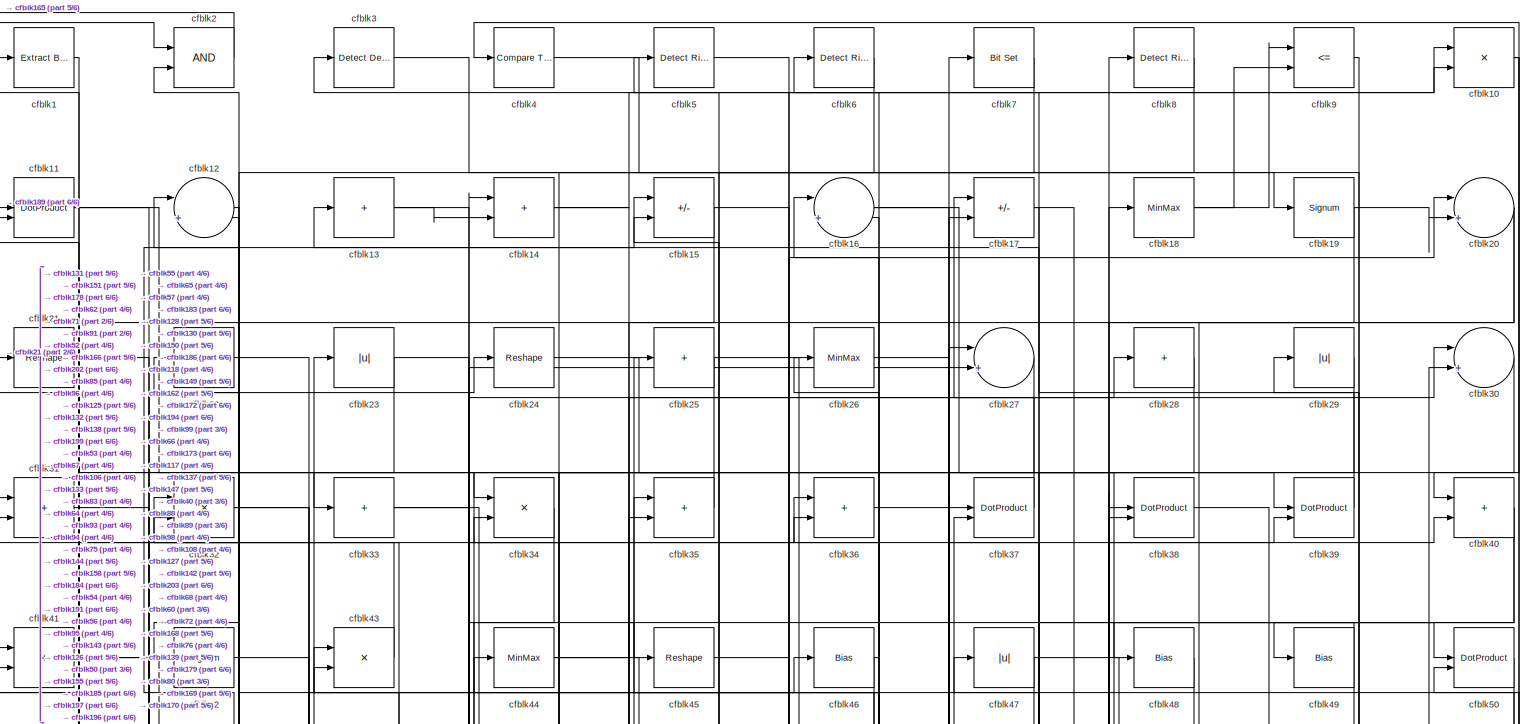
[diagram: root canvas - part 1/6, full width, top band]
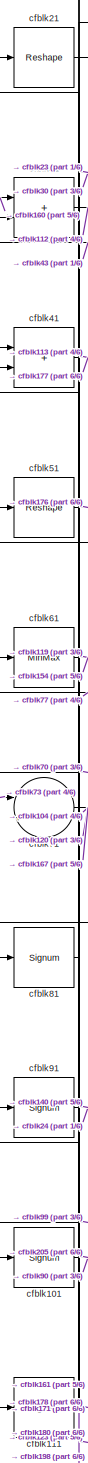
[diagram: root canvas - part 2/6, middle left region]
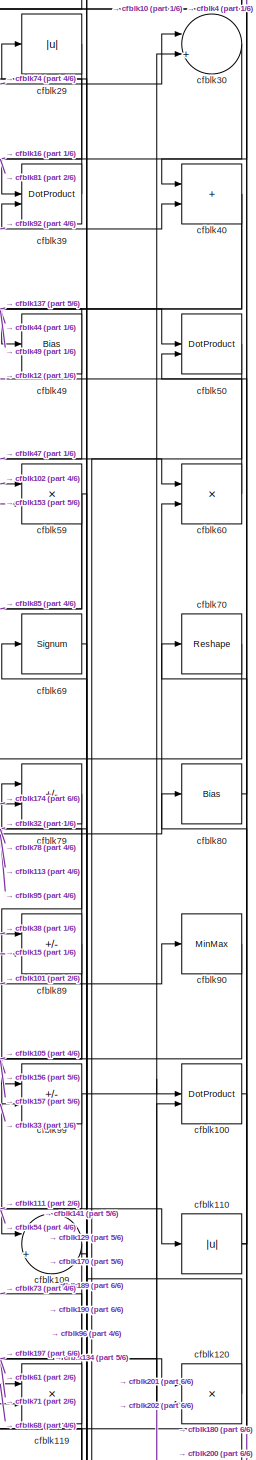
[diagram: root canvas - part 3/6, middle right region]
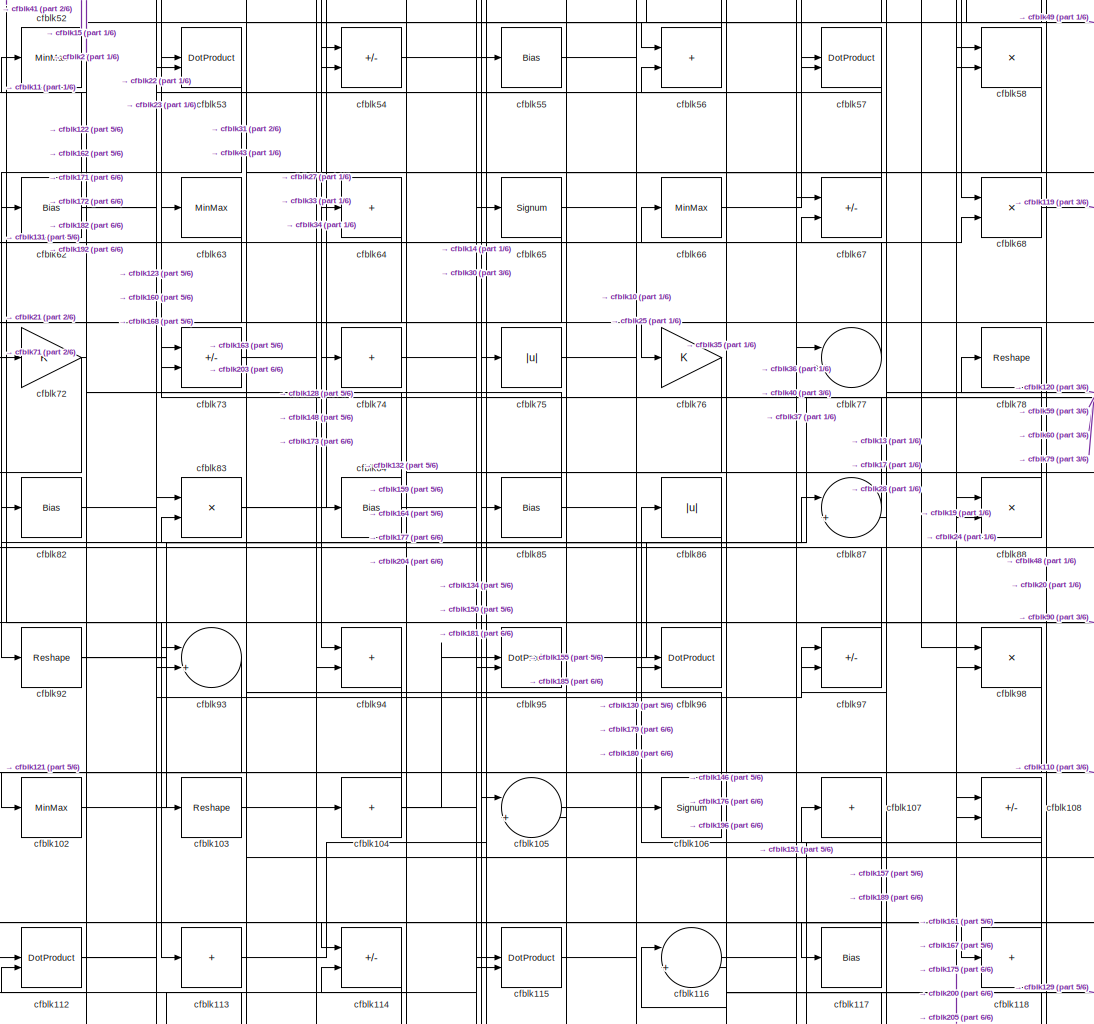
[diagram: root canvas - part 4/6, central region]
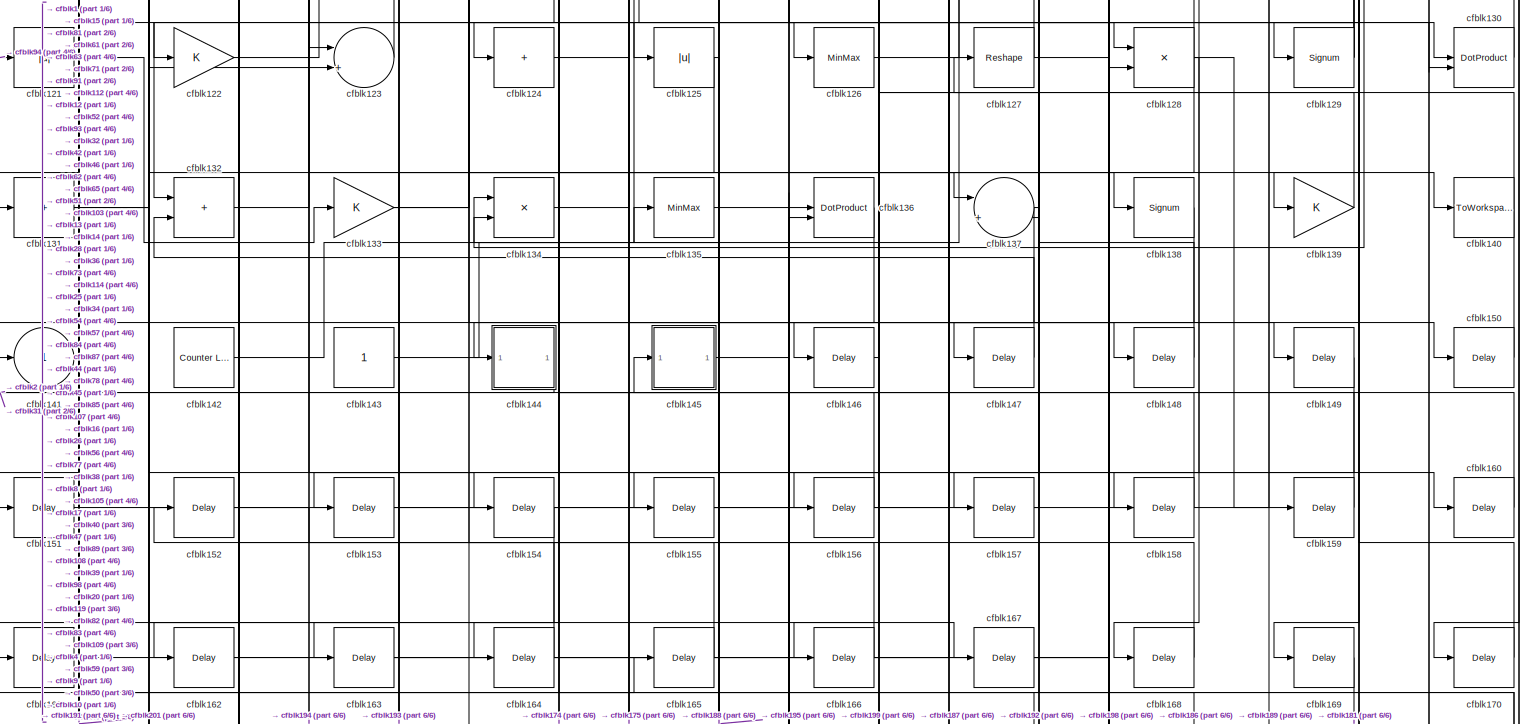
[diagram: root canvas - part 5/6, full width, bottom band]
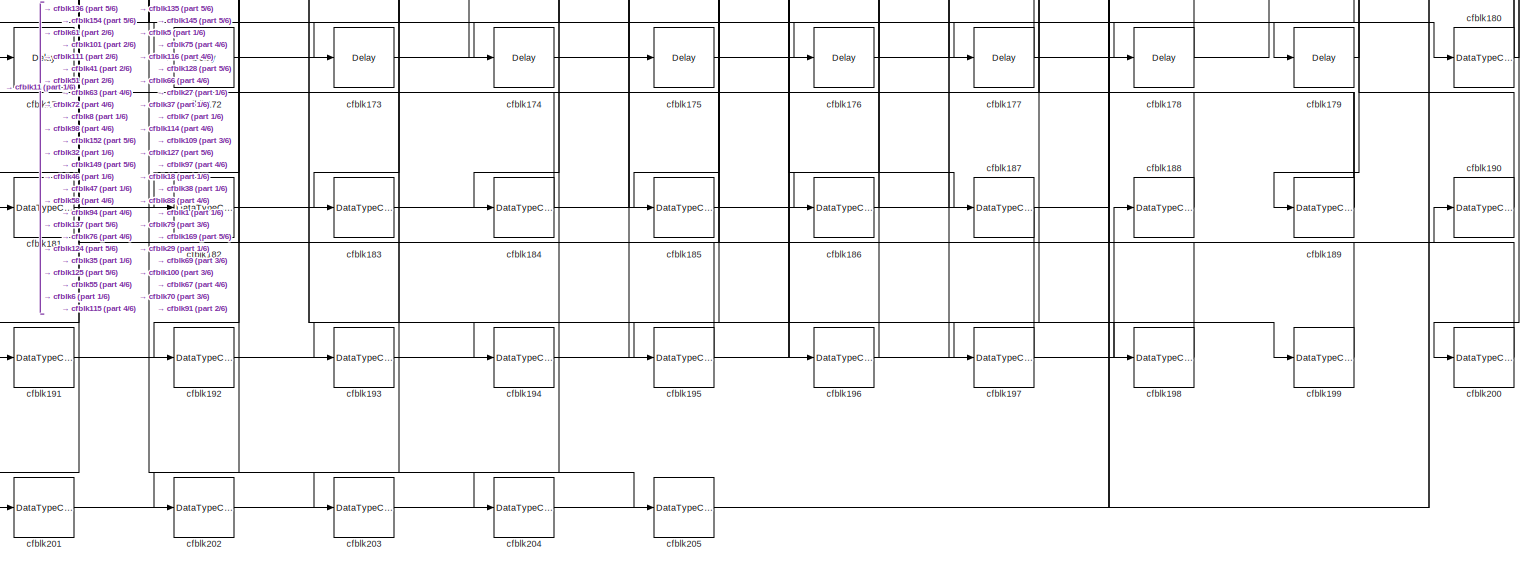
[diagram: root canvas - part 6/6, full width, bottom band]
MODEL slx_3c746002ce13
KIND model
CONFIG AbsTol = auto
CONFIG EnableMultiTasking = off
CONFIG FixedStep = auto
CONFIG MaxStep = auto
CONFIG MinStep = auto
CONFIG RelTol = 1e-3
CONFIG SampleTimeConstraint = Unconstrained
CONFIG SolverName = VariableStepAuto
CONFIG StartTime = 0.0
CONFIG StopTime = 10.0
BLOCK [Reference] cfblk1  REF=simulink/Logic and Bit
Operations/Extract Bits
  LibrarySourceBlock = hdlsllib/Logic and Bit\nOperations/Extract Bits
  SourceBlock = simulink/Logic and Bit\nOperations/Extract Bits
  SourceType = Extract Bits
BLOCK [Product] cfblk10
  Inputs = */
  RndMeth = Zero
  SaturateOnIntegerOverflow = on
BLOCK [DotProduct] cfblk100
  OutDataTypeStr = Inherit: Inherit via internal rule
BLOCK [Signum] cfblk101
BLOCK [MinMax] cfblk102
BLOCK [Reshape] cfblk103
BLOCK [Sum] cfblk104
  IconShape = rectangular
  Inputs = +
BLOCK [Sum] cfblk105
  Inputs = |++
BLOCK [Signum] cfblk106
BLOCK [Sum] cfblk107
  IconShape = rectangular
  Inputs = +
BLOCK [Sum] cfblk108
  IconShape = rectangular
  Inputs = +-
BLOCK [Sum] cfblk109
  Inputs = |++
BLOCK [DotProduct] cfblk11
  OutDataTypeStr = Inherit: Inherit via internal rule
BLOCK [Abs] cfblk110
  SaturateOnIntegerOverflow = off
BLOCK [Signum] cfblk111
BLOCK [DotProduct] cfblk112
  OutDataTypeStr = Inherit: Inherit via internal rule
BLOCK [Sum] cfblk113
  IconShape = rectangular
  Inputs = +
BLOCK [Sum] cfblk114
  IconShape = rectangular
  Inputs = +-
BLOCK [DotProduct] cfblk115
  OutDataTypeStr = Inherit: Inherit via internal rule
BLOCK [Sum] cfblk116
  Inputs = |++
BLOCK [Bias] cfblk117
  Bias = 0.0
  SaturateOnIntegerOverflow = off
BLOCK [Sum] cfblk118
  IconShape = rectangular
  Inputs = +
BLOCK [Product] cfblk119
  Inputs = */
  RndMeth = Zero
  SaturateOnIntegerOverflow = on
BLOCK [Sum] cfblk12
  Inputs = |++
BLOCK [Product] cfblk120
  Inputs = */
  RndMeth = Zero
  SaturateOnIntegerOverflow = on
BLOCK [Abs] cfblk121
  SaturateOnIntegerOverflow = off
BLOCK [Gain] cfblk122
BLOCK [Sum] cfblk123
  Inputs = |++
BLOCK [Sum] cfblk124
  IconShape = rectangular
  Inputs = +
BLOCK [Abs] cfblk125
  SaturateOnIntegerOverflow = off
BLOCK [MinMax] cfblk126
BLOCK [Reshape] cfblk127
BLOCK [Product] cfblk128
  Inputs = */
  RndMeth = Zero
  SaturateOnIntegerOverflow = on
BLOCK [Signum] cfblk129
BLOCK [Sum] cfblk13
  IconShape = rectangular
  Inputs = +
BLOCK [DotProduct] cfblk130
  OutDataTypeStr = Inherit: Inherit via internal rule
BLOCK [Sum] cfblk131
  IconShape = rectangular
  Inputs = +
BLOCK [Sum] cfblk132
  IconShape = rectangular
BLOCK [Gain] cfblk133
BLOCK [Product] cfblk134
  Inputs = */
  RndMeth = Zero
  SaturateOnIntegerOverflow = on
BLOCK [MinMax] cfblk135
BLOCK [DotProduct] cfblk136
  OutDataTypeStr = Inherit: Inherit via internal rule
BLOCK [Sum] cfblk137
  Inputs = |++
BLOCK [Signum] cfblk138
BLOCK [Gain] cfblk139
BLOCK [Sum] cfblk14
  IconShape = rectangular
BLOCK [ToWorkspace] cfblk140
  MaxDataPoints = inf
  SampleTime = -1
  SaveFormat = Timeseries
  VariableName = simout
BLOCK [Outport] cfblk141
  VectorParamsAs1DForOutWhenUnconnected = off
BLOCK [Reference] cfblk142  REF=hdlsllib/Sources/Counter
Limited
  SourceBlock = hdlsllib/Sources/Counter\nLimited
  SourceType = Counter Limited
BLOCK [Constant] cfblk143
  SampleTime = -1
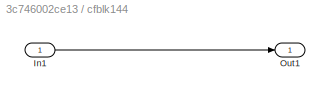
BLOCK [SubSystem] cfblk144
  LibrarySourceBlock = hdlsllib/Ports &\nSubsystems/Subsystem
BLOCK [Inport] cfblk144/In1
BLOCK [Outport] cfblk144/Out1
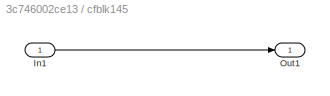
BLOCK [SubSystem] cfblk145
  LibrarySourceBlock = hdlsllib/Ports &\nSubsystems/Subsystem
BLOCK [Inport] cfblk145/In1
BLOCK [Outport] cfblk145/Out1
BLOCK [Delay] cfblk146
  InputPortMap = u0
  SampleTime = 1
BLOCK [Delay] cfblk147
  InputPortMap = u0
  SampleTime = 1
BLOCK [Delay] cfblk148
  InputPortMap = u0
  SampleTime = 1
BLOCK [Delay] cfblk149
  InputPortMap = u0
  SampleTime = 1
BLOCK [Sum] cfblk15
  IconShape = rectangular
  Inputs = +-
BLOCK [Delay] cfblk150
  InputPortMap = u0
  SampleTime = 1
BLOCK [Delay] cfblk151
  InputPortMap = u0
  SampleTime = 1
BLOCK [Delay] cfblk152
  InputPortMap = u0
  SampleTime = 1
BLOCK [Delay] cfblk153
  InputPortMap = u0
  SampleTime = 1
BLOCK [Delay] cfblk154
  InputPortMap = u0
  SampleTime = 1
BLOCK [Delay] cfblk155
  InputPortMap = u0
  SampleTime = 1
BLOCK [Delay] cfblk156
  InputPortMap = u0
  SampleTime = 1
BLOCK [Delay] cfblk157
  InputPortMap = u0
  SampleTime = 1
BLOCK [Delay] cfblk158
  InputPortMap = u0
  SampleTime = 1
BLOCK [Delay] cfblk159
  InputPortMap = u0
  SampleTime = 1
BLOCK [Sum] cfblk16
  Inputs = |++
BLOCK [Delay] cfblk160
  InputPortMap = u0
  SampleTime = 1
BLOCK [Delay] cfblk161
  InputPortMap = u0
  SampleTime = 1
BLOCK [Delay] cfblk162
  InputPortMap = u0
  SampleTime = 1
BLOCK [Delay] cfblk163
  InputPortMap = u0
  SampleTime = 1
BLOCK [Delay] cfblk164
  InputPortMap = u0
  SampleTime = 1
BLOCK [Delay] cfblk165
  InputPortMap = u0
  SampleTime = 1
BLOCK [Delay] cfblk166
  InputPortMap = u0
  SampleTime = 1
BLOCK [Delay] cfblk167
  InputPortMap = u0
  SampleTime = 1
BLOCK [Delay] cfblk168
  InputPortMap = u0
  SampleTime = 1
BLOCK [Delay] cfblk169
  InputPortMap = u0
  SampleTime = 1
BLOCK [Sum] cfblk17
  IconShape = rectangular
  Inputs = +-
BLOCK [Delay] cfblk170
  InputPortMap = u0
  SampleTime = 1
BLOCK [Delay] cfblk171
  InputPortMap = u0
  SampleTime = 1
BLOCK [Delay] cfblk172
  InputPortMap = u0
  SampleTime = 1
BLOCK [Delay] cfblk173
  InputPortMap = u0
  SampleTime = 1
BLOCK [Delay] cfblk174
  InputPortMap = u0
  SampleTime = 1
BLOCK [Delay] cfblk175
  InputPortMap = u0
  SampleTime = 1
BLOCK [Delay] cfblk176
  InputPortMap = u0
  SampleTime = 1
BLOCK [Delay] cfblk177
  InputPortMap = u0
  SampleTime = 1
BLOCK [Delay] cfblk178
  InputPortMap = u0
  SampleTime = 1
BLOCK [Delay] cfblk179
  InputPortMap = u0
  SampleTime = 1
BLOCK [MinMax] cfblk18
BLOCK [DataTypeConversion] cfblk180
  RndMeth = Floor
  SaturateOnIntegerOverflow = off
BLOCK [DataTypeConversion] cfblk181
  OutDataTypeStr = uint8
  RndMeth = Floor
  SaturateOnIntegerOverflow = off
BLOCK [DataTypeConversion] cfblk182
  OutDataTypeStr = uint8
  RndMeth = Floor
  SaturateOnIntegerOverflow = off
BLOCK [DataTypeConversion] cfblk183
  OutDataTypeStr = boolean
  RndMeth = Floor
  SaturateOnIntegerOverflow = off
BLOCK [DataTypeConversion] cfblk184
  OutDataTypeStr = uint8
  RndMeth = Floor
  SaturateOnIntegerOverflow = off
BLOCK [DataTypeConversion] cfblk185
  RndMeth = Floor
  SaturateOnIntegerOverflow = off
BLOCK [DataTypeConversion] cfblk186
  OutDataTypeStr = uint8
  RndMeth = Floor
  SaturateOnIntegerOverflow = off
BLOCK [DataTypeConversion] cfblk187
  OutDataTypeStr = uint8
  RndMeth = Floor
  SaturateOnIntegerOverflow = off
BLOCK [DataTypeConversion] cfblk188
  OutDataTypeStr = uint8
  RndMeth = Floor
  SaturateOnIntegerOverflow = off
BLOCK [DataTypeConversion] cfblk189
  RndMeth = Floor
  SaturateOnIntegerOverflow = off
BLOCK [Signum] cfblk19
BLOCK [DataTypeConversion] cfblk190
  OutDataTypeStr = uint8
  RndMeth = Floor
  SaturateOnIntegerOverflow = off
BLOCK [DataTypeConversion] cfblk191
  RndMeth = Floor
  SaturateOnIntegerOverflow = off
BLOCK [DataTypeConversion] cfblk192
  OutDataTypeStr = uint8
  RndMeth = Floor
  SaturateOnIntegerOverflow = off
BLOCK [DataTypeConversion] cfblk193
  OutDataTypeStr = uint8
  RndMeth = Floor
  SaturateOnIntegerOverflow = off
BLOCK [DataTypeConversion] cfblk194
  OutDataTypeStr = uint8
  RndMeth = Floor
  SaturateOnIntegerOverflow = off
BLOCK [DataTypeConversion] cfblk195
  OutDataTypeStr = uint8
  RndMeth = Floor
  SaturateOnIntegerOverflow = off
BLOCK [DataTypeConversion] cfblk196
  OutDataTypeStr = uint8
  RndMeth = Floor
  SaturateOnIntegerOverflow = off
BLOCK [DataTypeConversion] cfblk197
  OutDataTypeStr = uint8
  RndMeth = Floor
  SaturateOnIntegerOverflow = off
BLOCK [DataTypeConversion] cfblk198
  OutDataTypeStr = uint8
  RndMeth = Floor
  SaturateOnIntegerOverflow = off
BLOCK [DataTypeConversion] cfblk199
  OutDataTypeStr = uint8
  RndMeth = Floor
  SaturateOnIntegerOverflow = off
BLOCK [Logic] cfblk2
  AllPortsSameDT = off
  OutDataTypeStr = boolean
BLOCK [Sum] cfblk20
  Inputs = |++
BLOCK [DataTypeConversion] cfblk200
  OutDataTypeStr = uint8
  RndMeth = Floor
  SaturateOnIntegerOverflow = off
BLOCK [DataTypeConversion] cfblk201
  OutDataTypeStr = uint8
  RndMeth = Floor
  SaturateOnIntegerOverflow = off
BLOCK [DataTypeConversion] cfblk202
  OutDataTypeStr = uint8
  RndMeth = Floor
  SaturateOnIntegerOverflow = off
BLOCK [DataTypeConversion] cfblk203
  OutDataTypeStr = uint8
  RndMeth = Floor
  SaturateOnIntegerOverflow = off
BLOCK [DataTypeConversion] cfblk204
  OutDataTypeStr = uint8
  RndMeth = Floor
  SaturateOnIntegerOverflow = off
BLOCK [DataTypeConversion] cfblk205
  OutDataTypeStr = uint8
  RndMeth = Floor
  SaturateOnIntegerOverflow = off
BLOCK [Reshape] cfblk21
BLOCK [Bias] cfblk22
  Bias = 0.0
  SaturateOnIntegerOverflow = off
BLOCK [Abs] cfblk23
  SaturateOnIntegerOverflow = off
BLOCK [Reshape] cfblk24
BLOCK [Sum] cfblk25
  IconShape = rectangular
  Inputs = +
BLOCK [MinMax] cfblk26
BLOCK [Sum] cfblk27
  Inputs = |++
BLOCK [Sum] cfblk28
  IconShape = rectangular
  Inputs = +
BLOCK [Abs] cfblk29
  SaturateOnIntegerOverflow = off
BLOCK [Reference] cfblk3  REF=simulink/Logic and Bit
Operations/Detect
Decrease
  LibrarySourceBlock = hdlsllib/Logic and Bit\nOperations/Detect\nDecrease
  SourceBlock = simulink/Logic and Bit\nOperations/Detect\nDecrease
  SourceType = Detect Decrease
BLOCK [Sum] cfblk30
  Inputs = |++
BLOCK [Sum] cfblk31
  IconShape = rectangular
BLOCK [Product] cfblk32
  Inputs = */
  RndMeth = Zero
  SaturateOnIntegerOverflow = on
BLOCK [Sum] cfblk33
  IconShape = rectangular
  Inputs = +
BLOCK [Product] cfblk34
  Inputs = */
  RndMeth = Zero
  SaturateOnIntegerOverflow = on
BLOCK [Sum] cfblk35
  IconShape = rectangular
BLOCK [Sum] cfblk36
  IconShape = rectangular
BLOCK [DotProduct] cfblk37
  OutDataTypeStr = Inherit: Inherit via internal rule
BLOCK [DotProduct] cfblk38
  OutDataTypeStr = Inherit: Inherit via internal rule
BLOCK [DotProduct] cfblk39
  OutDataTypeStr = Inherit: Inherit via internal rule
BLOCK [Reference] cfblk4  REF=hdlsllib/Logic and Bit
Operations/Compare
To Constant
  SourceBlock = hdlsllib/Logic and Bit\nOperations/Compare\nTo Constant
  SourceType = Compare To Constant
BLOCK [Sum] cfblk40
  IconShape = rectangular
BLOCK [Sum] cfblk41
  IconShape = rectangular
BLOCK [Signum] cfblk42
BLOCK [Product] cfblk43
  Inputs = */
  RndMeth = Zero
  SaturateOnIntegerOverflow = on
BLOCK [MinMax] cfblk44
BLOCK [Reshape] cfblk45
BLOCK [Bias] cfblk46
  Bias = 0.0
  SaturateOnIntegerOverflow = off
BLOCK [Abs] cfblk47
  SaturateOnIntegerOverflow = off
BLOCK [Bias] cfblk48
  Bias = 0.0
  SaturateOnIntegerOverflow = off
BLOCK [Bias] cfblk49
  Bias = 0.0
  SaturateOnIntegerOverflow = off
BLOCK [Reference] cfblk5  REF=hdlsllib/Logic and Bit
Operations/Detect Rise
Positive
  SourceBlock = hdlsllib/Logic and Bit\nOperations/Detect Rise\nPositive
  SourceType = Detect Rise Positive
BLOCK [DotProduct] cfblk50
  OutDataTypeStr = Inherit: Inherit via internal rule
BLOCK [Reshape] cfblk51
BLOCK [MinMax] cfblk52
BLOCK [DotProduct] cfblk53
  OutDataTypeStr = Inherit: Inherit via internal rule
BLOCK [Sum] cfblk54
  IconShape = rectangular
  Inputs = +-
BLOCK [Bias] cfblk55
  Bias = 0.0
  SaturateOnIntegerOverflow = off
BLOCK [Sum] cfblk56
  IconShape = rectangular
BLOCK [DotProduct] cfblk57
  OutDataTypeStr = Inherit: Inherit via internal rule
BLOCK [Product] cfblk58
  Inputs = */
  RndMeth = Zero
  SaturateOnIntegerOverflow = on
BLOCK [Product] cfblk59
  Inputs = */
  RndMeth = Zero
  SaturateOnIntegerOverflow = on
BLOCK [Reference] cfblk6  REF=hdlsllib/Logic and Bit
Operations/Detect Rise
Positive
  SourceBlock = hdlsllib/Logic and Bit\nOperations/Detect Rise\nPositive
  SourceType = Detect Rise Positive
BLOCK [Product] cfblk60
  Inputs = */
  RndMeth = Zero
  SaturateOnIntegerOverflow = on
BLOCK [MinMax] cfblk61
BLOCK [Bias] cfblk62
  Bias = 0.0
  SaturateOnIntegerOverflow = off
BLOCK [MinMax] cfblk63
BLOCK [Sum] cfblk64
  IconShape = rectangular
  Inputs = +
BLOCK [Signum] cfblk65
BLOCK [MinMax] cfblk66
BLOCK [Sum] cfblk67
  IconShape = rectangular
  Inputs = +-
BLOCK [Product] cfblk68
  Inputs = */
  RndMeth = Zero
  SaturateOnIntegerOverflow = on
BLOCK [Signum] cfblk69
BLOCK [Reference] cfblk7  REF=simulink/Logic and Bit
Operations/Bit Set
  LibrarySourceBlock = hdlsllib/Logic and Bit\nOperations/Bit Set
  SourceBlock = simulink/Logic and Bit\nOperations/Bit Set
  SourceType = Bit Set
BLOCK [Reshape] cfblk70
BLOCK [Sum] cfblk71
  Inputs = |++
BLOCK [Gain] cfblk72
BLOCK [Sum] cfblk73
  IconShape = rectangular
  Inputs = +-
BLOCK [Sum] cfblk74
  IconShape = rectangular
  Inputs = +
BLOCK [Abs] cfblk75
  SaturateOnIntegerOverflow = off
BLOCK [Gain] cfblk76
BLOCK [Sum] cfblk77
  Inputs = |++
BLOCK [Reshape] cfblk78
BLOCK [Sum] cfblk79
  IconShape = rectangular
  Inputs = +-
BLOCK [Reference] cfblk8  REF=hdlsllib/Logic and Bit
Operations/Detect Rise
Positive
  SourceBlock = hdlsllib/Logic and Bit\nOperations/Detect Rise\nPositive
  SourceType = Detect Rise Positive
BLOCK [Bias] cfblk80
  Bias = 0.0
  SaturateOnIntegerOverflow = off
BLOCK [Signum] cfblk81
BLOCK [Bias] cfblk82
  Bias = 0.0
  SaturateOnIntegerOverflow = off
BLOCK [Product] cfblk83
  Inputs = */
  RndMeth = Zero
  SaturateOnIntegerOverflow = on
BLOCK [Bias] cfblk84
  Bias = 0.0
  SaturateOnIntegerOverflow = off
BLOCK [Bias] cfblk85
  Bias = 0.0
  SaturateOnIntegerOverflow = off
BLOCK [Abs] cfblk86
  SaturateOnIntegerOverflow = off
BLOCK [Sum] cfblk87
  Inputs = |++
BLOCK [Product] cfblk88
  Inputs = */
  RndMeth = Zero
  SaturateOnIntegerOverflow = on
BLOCK [Sum] cfblk89
  IconShape = rectangular
  Inputs = +-
BLOCK [RelationalOperator] cfblk9
  InputSameDT = off
  Operator = <=
  OutDataTypeStr = boolean
BLOCK [MinMax] cfblk90
BLOCK [Signum] cfblk91
BLOCK [Reshape] cfblk92
BLOCK [Sum] cfblk93
  Inputs = |++
BLOCK [Sum] cfblk94
  IconShape = rectangular
BLOCK [DotProduct] cfblk95
  OutDataTypeStr = Inherit: Inherit via internal rule
BLOCK [DotProduct] cfblk96
  OutDataTypeStr = Inherit: Inherit via internal rule
BLOCK [Sum] cfblk97
  IconShape = rectangular
  Inputs = +-
BLOCK [Product] cfblk98
  Inputs = */
  RndMeth = Zero
  SaturateOnIntegerOverflow = on
BLOCK [Sum] cfblk99
  IconShape = rectangular
  Inputs = +-
LINE cfblk100:1 -> cfblk200:1
NET cfblk101:1 -> cfblk205:1, cfblk90:1
LINE cfblk102:1 -> cfblk59:1
LINE cfblk103:1 -> cfblk128:1
NET cfblk104:1 -> cfblk31:2, cfblk95:1, cfblk96:1
LINE cfblk105:1 -> cfblk86:1
LINE cfblk106:1 -> cfblk43:1
LINE cfblk107:1 -> cfblk146:1
LINE cfblk108:1 -> cfblk116:2
LINE cfblk109:1 -> cfblk197:1
NET cfblk10:1 -> cfblk170:1, cfblk40:1
NET cfblk110:1 -> cfblk50:2, cfblk80:1
LINE cfblk111:1 -> cfblk178:1
NET cfblk112:1 -> cfblk57:2, cfblk97:1
LINE cfblk113:1 -> cfblk79:1
LINE cfblk114:1 -> cfblk132:1
LINE cfblk115:1 -> cfblk180:1
LINE cfblk116:1 -> cfblk77:2
NET cfblk117:1 -> cfblk107:1, cfblk114:1
LINE cfblk118:1 -> cfblk106:1
NET cfblk119:1 -> cfblk141:1, cfblk73:2
NET cfblk11:1 -> cfblk64:1, cfblk93:1
LINE cfblk120:1 -> cfblk78:1
LINE cfblk121:1 -> cfblk133:1
LINE cfblk122:1 -> cfblk65:1
LINE cfblk123:1 -> cfblk51:1
LINE cfblk124:1 -> cfblk175:1
NET cfblk125:1 -> cfblk153:1, cfblk195:1
LINE cfblk126:1 -> cfblk8:1
NET cfblk127:1 -> cfblk39:2, cfblk44:1
NET cfblk128:1 -> cfblk158:1, cfblk159:1, cfblk186:1, cfblk36:2
NET cfblk129:1 -> cfblk124:1, cfblk82:1, cfblk83:2
LINE cfblk12:1 -> cfblk42:1
LINE cfblk130:1 -> cfblk43:2
NET cfblk131:1 -> cfblk123:2, cfblk63:1
LINE cfblk132:1 -> cfblk46:1
NET cfblk133:1 -> cfblk28:1, cfblk36:1
LINE cfblk134:1 -> cfblk87:1
LINE cfblk135:1 -> cfblk187:1
LINE cfblk136:1 -> cfblk191:1
NET cfblk137:1 -> cfblk174:1, cfblk47:1
LINE cfblk138:1 -> cfblk166:1
LINE cfblk139:1 -> cfblk26:1
NET cfblk13:1 -> cfblk137:1, cfblk14:2
LINE cfblk142:1 -> cfblk38:1
LINE cfblk143:1 -> cfblk25:1
LINE cfblk144/In1:1 -> cfblk144/Out1:1
LINE cfblk144:1 -> cfblk2:1
LINE cfblk145/In1:1 -> cfblk145/Out1:1
LINE cfblk145:1 -> cfblk198:1
LINE cfblk146:1 -> cfblk56:2
LINE cfblk147:1 -> cfblk132:2
LINE cfblk148:1 -> cfblk105:1
LINE cfblk149:1 -> cfblk193:1
NET cfblk14:1 -> cfblk10:2, cfblk56:1
LINE cfblk150:1 -> cfblk16:1
LINE cfblk151:1 -> cfblk77:1
LINE cfblk152:1 -> cfblk194:1
LINE cfblk153:1 -> cfblk59:2
LINE cfblk154:1 -> cfblk201:1
LINE cfblk155:1 -> cfblk15:2
LINE cfblk156:1 -> cfblk134:2
LINE cfblk157:1 -> cfblk87:2
LINE cfblk158:1 -> cfblk34:2
LINE cfblk159:1 -> cfblk54:2
NET cfblk15:1 -> cfblk151:1, cfblk89:2
LINE cfblk160:1 -> cfblk31:1
LINE cfblk161:1 -> cfblk108:1
LINE cfblk162:1 -> cfblk17:2
LINE cfblk163:1 -> cfblk128:2
LINE cfblk164:1 -> cfblk112:2
LINE cfblk165:1 -> cfblk14:1
LINE cfblk166:1 -> cfblk12:2
LINE cfblk167:1 -> cfblk98:2
LINE cfblk168:1 -> cfblk83:1
LINE cfblk169:1 -> cfblk181:1
NET cfblk16:1 -> cfblk39:1, cfblk99:1
LINE cfblk170:1 -> cfblk109:2
LINE cfblk171:1 -> cfblk41:2
LINE cfblk172:1 -> cfblk27:1
LINE cfblk173:1 -> cfblk94:2
LINE cfblk174:1 -> cfblk79:2
LINE cfblk175:1 -> cfblk88:2
LINE cfblk176:1 -> cfblk116:1
LINE cfblk177:1 -> cfblk114:2
LINE cfblk178:1 -> cfblk1:1
LINE cfblk179:1 -> cfblk29:1
NET cfblk17:1 -> cfblk147:1, cfblk98:1
NET cfblk180:1 -> cfblk67:2, cfblk70:1, cfblk91:1
LINE cfblk181:1 -> cfblk115:1
LINE cfblk182:1 -> cfblk115:2
LINE cfblk183:1 -> cfblk7:1
LINE cfblk184:1 -> cfblk32:2
NET cfblk185:1 -> cfblk18:1, cfblk55:1
LINE cfblk186:1 -> cfblk6:1
LINE cfblk187:1 -> cfblk190:1
LINE cfblk188:1 -> cfblk135:1
NET cfblk189:1 -> cfblk11:1, cfblk127:1, cfblk97:2
NET cfblk18:1 -> cfblk9:1, cfblk9:2
LINE cfblk190:1 -> cfblk69:1
NET cfblk191:1 -> cfblk188:1, cfblk35:2
LINE cfblk192:1 -> cfblk136:1
LINE cfblk193:1 -> cfblk136:2
LINE cfblk194:1 -> cfblk37:1
LINE cfblk195:1 -> cfblk152:1
LINE cfblk196:1 -> cfblk66:1
LINE cfblk197:1 -> cfblk5:1
LINE cfblk198:1 -> cfblk61:1
LINE cfblk199:1 -> cfblk145:1
NET cfblk19:1 -> cfblk108:2, cfblk20:2
LINE cfblk1:1 -> cfblk131:1
LINE cfblk200:1 -> cfblk88:1
LINE cfblk201:1 -> cfblk100:1
LINE cfblk202:1 -> cfblk100:2
LINE cfblk203:1 -> cfblk38:2
LINE cfblk204:1 -> cfblk58:1
LINE cfblk205:1 -> cfblk58:2
NET cfblk20:1 -> cfblk168:1, cfblk95:2
NET cfblk21:1 -> cfblk71:1, cfblk73:1
LINE cfblk22:1 -> cfblk53:2
NET cfblk23:1 -> cfblk45:1, cfblk71:2
LINE cfblk24:1 -> cfblk68:1
NET cfblk25:1 -> cfblk144:1, cfblk57:1
LINE cfblk26:1 -> cfblk149:1
LINE cfblk27:1 -> cfblk54:1
LINE cfblk28:1 -> cfblk117:1
LINE cfblk29:1 -> cfblk33:1
LINE cfblk2:1 -> cfblk165:1
LINE cfblk30:1 -> cfblk81:1
LINE cfblk31:1 -> cfblk112:1
NET cfblk32:1 -> cfblk125:1, cfblk199:1
NET cfblk33:1 -> cfblk75:1, cfblk99:2
LINE cfblk34:1 -> cfblk94:1
LINE cfblk35:1 -> cfblk34:1
LINE cfblk36:1 -> cfblk118:1
LINE cfblk37:1 -> cfblk17:1
LINE cfblk38:1 -> cfblk89:1
LINE cfblk39:1 -> cfblk3:1
LINE cfblk3:1 -> cfblk19:1
NET cfblk40:1 -> cfblk137:2, cfblk49:1
NET cfblk41:1 -> cfblk113:1, cfblk177:1
LINE cfblk42:1 -> cfblk138:1
LINE cfblk43:1 -> cfblk21:1
NET cfblk44:1 -> cfblk126:1, cfblk50:1
LINE cfblk45:1 -> cfblk130:1
NET cfblk46:1 -> cfblk16:2, cfblk183:1
NET cfblk47:1 -> cfblk173:1, cfblk60:1
LINE cfblk48:1 -> cfblk72:1
NET cfblk49:1 -> cfblk48:1, cfblk76:1
LINE cfblk4:1 -> cfblk139:1
LINE cfblk50:1 -> cfblk134:1
LINE cfblk51:1 -> cfblk176:1
NET cfblk52:1 -> cfblk122:1, cfblk15:1
LINE cfblk53:1 -> cfblk92:1
LINE cfblk54:1 -> cfblk110:1
LINE cfblk55:1 -> cfblk20:1
LINE cfblk56:1 -> cfblk35:1
NET cfblk57:1 -> cfblk163:1, cfblk164:1
LINE cfblk58:1 -> cfblk203:1
NET cfblk59:1 -> cfblk129:1, cfblk85:1, cfblk96:2
LINE cfblk5:1 -> cfblk196:1
LINE cfblk60:1 -> cfblk12:1
NET cfblk61:1 -> cfblk119:2, cfblk120:2, cfblk154:1
NET cfblk62:1 -> cfblk11:2, cfblk160:1, cfblk93:2
LINE cfblk63:1 -> cfblk192:1
LINE cfblk64:1 -> cfblk74:1
NET cfblk65:1 -> cfblk103:1, cfblk10:1
LINE cfblk66:1 -> cfblk37:2
LINE cfblk67:1 -> cfblk23:1
LINE cfblk68:1 -> cfblk119:1
LINE cfblk69:1 -> cfblk189:1
LINE cfblk6:1 -> cfblk185:1
LINE cfblk70:1 -> cfblk101:1
NET cfblk71:1 -> cfblk104:1, cfblk120:1, cfblk167:1
NET cfblk72:1 -> cfblk171:1, cfblk172:1
LINE cfblk73:1 -> cfblk148:1
LINE cfblk74:1 -> cfblk30:1
LINE cfblk75:1 -> cfblk179:1
LINE cfblk76:1 -> cfblk204:1
LINE cfblk77:1 -> cfblk41:1
LINE cfblk78:1 -> cfblk155:1
LINE cfblk79:1 -> cfblk109:1
LINE cfblk7:1 -> cfblk184:1
LINE cfblk80:1 -> cfblk4:1
LINE cfblk81:1 -> cfblk161:1
LINE cfblk82:1 -> cfblk123:1
NET cfblk83:1 -> cfblk27:2, cfblk68:2
NET cfblk84:1 -> cfblk150:1, cfblk52:1
NET cfblk85:1 -> cfblk130:2, cfblk22:1
LINE cfblk86:1 -> cfblk102:1
LINE cfblk87:1 -> cfblk53:1
LINE cfblk88:1 -> cfblk13:1
NET cfblk89:1 -> cfblk156:1, cfblk157:1, cfblk32:1
LINE cfblk8:1 -> cfblk202:1
LINE cfblk90:1 -> cfblk105:2
NET cfblk91:1 -> cfblk140:1, cfblk24:1
NET cfblk92:1 -> cfblk40:2, cfblk67:1, cfblk84:1
LINE cfblk93:1 -> cfblk162:1
LINE cfblk94:1 -> cfblk121:1
LINE cfblk95:1 -> cfblk60:2
LINE cfblk96:1 -> cfblk2:2
LINE cfblk97:1 -> cfblk62:1
LINE cfblk98:1 -> cfblk182:1
NET cfblk99:1 -> cfblk111:1, cfblk30:2
LINE cfblk9:1 -> cfblk169:1
note: NET lines group one-source signal fan-out (src -> all destinations, sorted); 1:1 wires keep LINE
